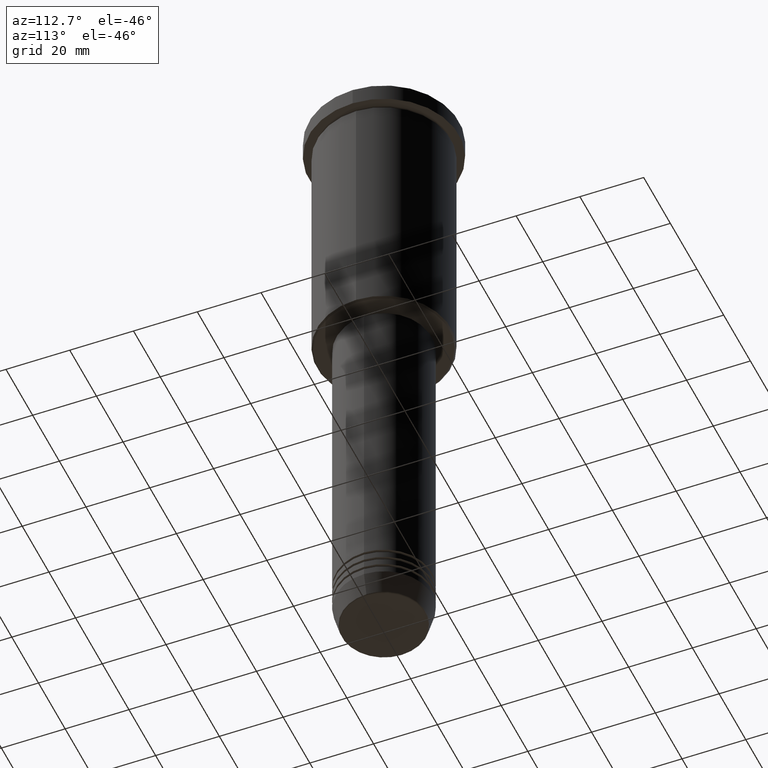
[diagram: clean part render]
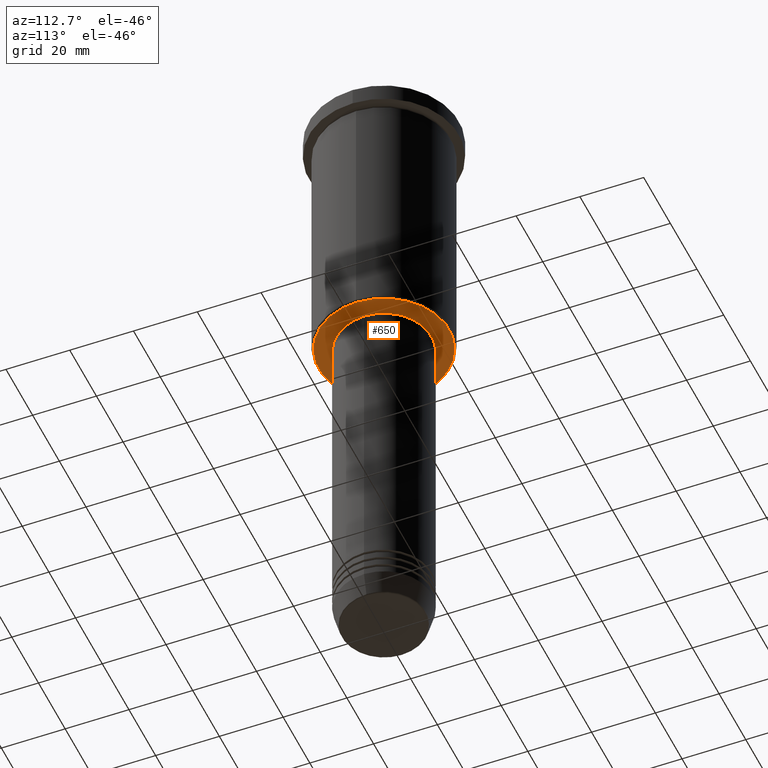
[diagram: same view with one face highlighted and labeled with its STEP entity id]
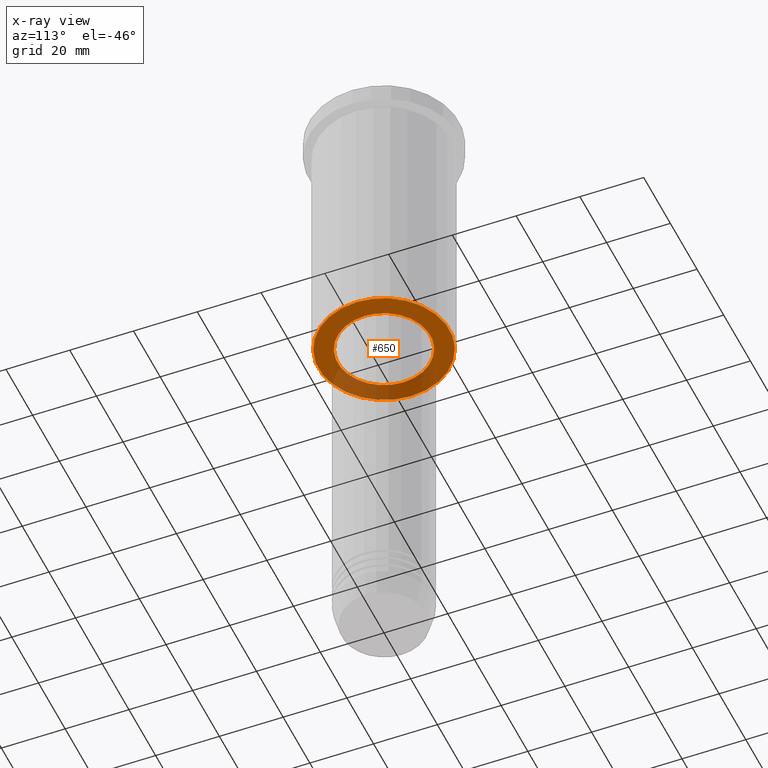
[diagram: x-ray of the same camera — body ghosted, the highlighted face saturated]
A machine part, auxiliary view. The second image highlights one B-rep face of the part: STEP entity #650.
The next image is the same camera in x-ray: the body ghosted, the highlighted face saturated — about 30% of this face is hidden behind the body in this view.
In plain terms, the highlighted planar face has unit normal (0, 0, -1).
Its self-contained STEP definition (entity closure, byte-faithful):
#22 = DIRECTION ( 'NONE',  ( -1.000000000000000000, 0.000000000000000000, 0.000000000000000000 ) ) ;
#53 = FACE_OUTER_BOUND ( 'NONE', #878, .T. ) ;
#75 = ORIENTED_EDGE ( 'NONE', *, *, #731, .T. ) ;
#86 = VERTEX_POINT ( 'NONE', #282 ) ;
#161 = CARTESIAN_POINT ( 'NONE',  ( 14.49999999999999822, 0.000000000000000000, -86.00000000000000000 ) ) ;
#197 = CARTESIAN_POINT ( 'NONE',  ( 20.49999999999996447, 0.000000000000000000, -86.00000000000000000 ) ) ;
#218 = ORIENTED_EDGE ( 'NONE', *, *, #919, .T. ) ;
#268 = CIRCLE ( 'NONE', #406, 20.49999999999996447 ) ;
#279 = ORIENTED_EDGE ( 'NONE', *, *, #769, .T. ) ;
#282 = CARTESIAN_POINT ( 'NONE',  ( -20.49999999999996447, 2.541142108230755902E-15, -86.00000000000000000 ) ) ;
#293 = CARTESIAN_POINT ( 'NONE',  ( 0.000000000000000000, 0.000000000000000000, -86.00000000000000000 ) ) ;
#337 = DIRECTION ( 'NONE',  ( 0.000000000000000000, 0.000000000000000000, -1.000000000000000000 ) ) ;
#343 = VERTEX_POINT ( 'NONE', #197 ) ;
#394 = ORIENTED_EDGE ( 'NONE', *, *, #644, .T. ) ;
#406 = AXIS2_PLACEMENT_3D ( 'NONE', #774, #1118, #22 ) ;
#425 = CIRCLE ( 'NONE', #1060, 20.49999999999996447 ) ;
#427 = FACE_BOUND ( 'NONE', #524, .T. ) ;
#519 = CIRCLE ( 'NONE', #652, 14.49999999999999822 ) ;
#524 = EDGE_LOOP ( 'NONE', ( #394, #75 ) ) ;
#549 = DIRECTION ( 'NONE',  ( 1.000000000000000000, 0.000000000000000000, 0.000000000000000000 ) ) ;
#551 = VERTEX_POINT ( 'NONE', #161 ) ;
#558 = CIRCLE ( 'NONE', #686, 14.49999999999999822 ) ;
#635 = CARTESIAN_POINT ( 'NONE',  ( 0.000000000000000000, 0.000000000000000000, -86.00000000000000000 ) ) ;
#644 = EDGE_CURVE ( 'NONE', #551, #664, #558, .T. ) ;
#650 = ADVANCED_FACE ( 'NONE', ( #53, #427 ), #784, .T. ) ;
#652 = AXIS2_PLACEMENT_3D ( 'NONE', #293, #931, #1135 ) ;
#664 = VERTEX_POINT ( 'NONE', #734 ) ;
#686 = AXIS2_PLACEMENT_3D ( 'NONE', #635, #989, #549 ) ;
#731 = EDGE_CURVE ( 'NONE', #664, #551, #519, .T. ) ;
#734 = CARTESIAN_POINT ( 'NONE',  ( -14.49999999999999822, 1.775737858763662015E-15, -86.00000000000000000 ) ) ;
#746 = DIRECTION ( 'NONE',  ( -1.000000000000000000, 0.000000000000000000, -0.000000000000000000 ) ) ;
#769 = EDGE_CURVE ( 'NONE', #86, #343, #268, .T. ) ;
#774 = CARTESIAN_POINT ( 'NONE',  ( 0.000000000000000000, 0.000000000000000000, -86.00000000000000000 ) ) ;
#784 = PLANE ( 'NONE',  #837 ) ;
#788 = DIRECTION ( 'NONE',  ( 0.000000000000000000, 0.000000000000000000, -1.000000000000000000 ) ) ;
#804 = CARTESIAN_POINT ( 'NONE',  ( 0.000000000000000000, 0.000000000000000000, -86.00000000000000000 ) ) ;
#837 = AXIS2_PLACEMENT_3D ( 'NONE', #1143, #337, #746 ) ;
#874 = DIRECTION ( 'NONE',  ( -1.000000000000000000, 0.000000000000000000, 0.000000000000000000 ) ) ;
#878 = EDGE_LOOP ( 'NONE', ( #218, #279 ) ) ;
#919 = EDGE_CURVE ( 'NONE', #343, #86, #425, .T. ) ;
#931 = DIRECTION ( 'NONE',  ( -0.000000000000000000, -0.000000000000000000, 1.000000000000000000 ) ) ;
#989 = DIRECTION ( 'NONE',  ( -0.000000000000000000, -0.000000000000000000, 1.000000000000000000 ) ) ;
#1060 = AXIS2_PLACEMENT_3D ( 'NONE', #804, #788, #874 ) ;
#1118 = DIRECTION ( 'NONE',  ( 0.000000000000000000, 0.000000000000000000, -1.000000000000000000 ) ) ;
#1135 = DIRECTION ( 'NONE',  ( 1.000000000000000000, 0.000000000000000000, 0.000000000000000000 ) ) ;
#1143 = CARTESIAN_POINT ( 'NONE',  ( 0.000000000000000000, 21.00000000000000000, -86.00000000000000000 ) ) ;